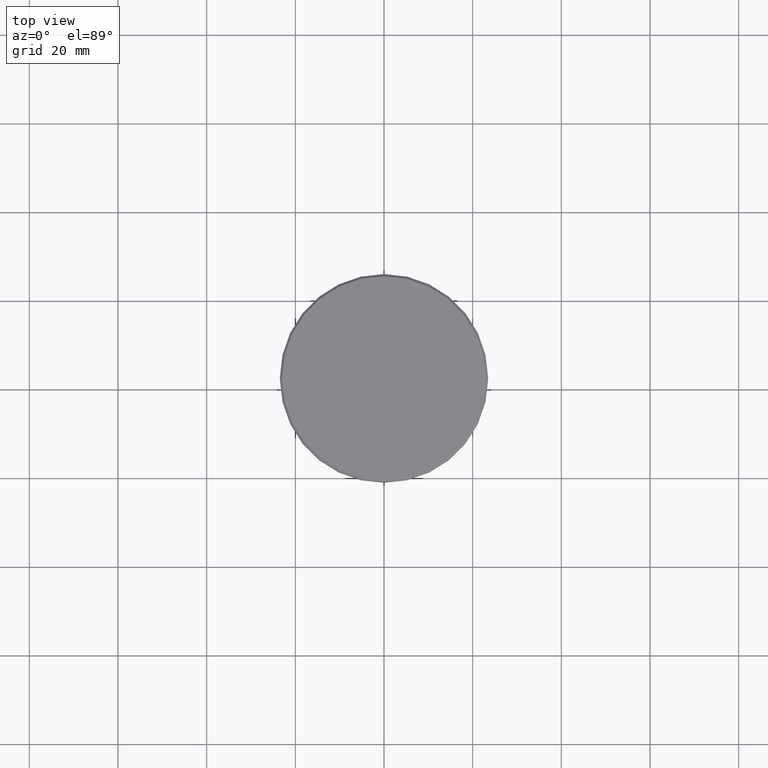
[diagram: clean part render]
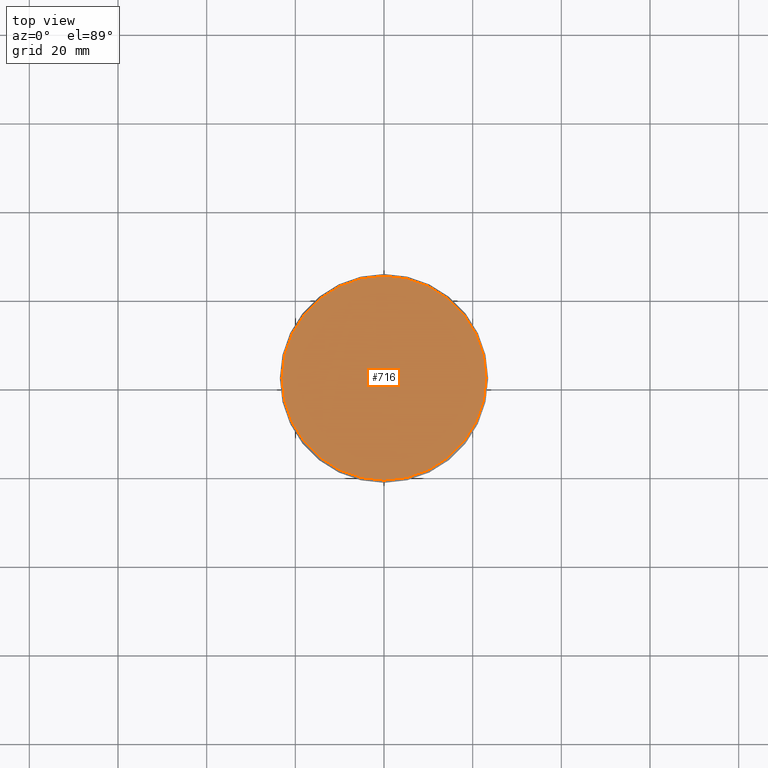
[diagram: same view with one face highlighted and labeled with its STEP entity id]
A machine part, top view. The second image highlights one B-rep face of the part: STEP entity #716.
In plain terms, the highlighted planar face has unit normal (0, -0, 1).
Its self-contained STEP definition (entity closure, byte-faithful):
#14 = AXIS2_PLACEMENT_3D ( 'NONE', #118, #853, #404 ) ;
#21 = PLANE ( 'NONE',  #673 ) ;
#36 = VERTEX_POINT ( 'NONE', #507 ) ;
#118 = CARTESIAN_POINT ( 'NONE',  ( 0.000000000000000000, 0.000000000000000000, 0.000000000000000000 ) ) ;
#151 = CARTESIAN_POINT ( 'NONE',  ( 0.000000000000000000, 0.000000000000000000, 0.000000000000000000 ) ) ;
#337 = DIRECTION ( 'NONE',  ( 1.000000000000000000, 0.000000000000000000, 0.000000000000000000 ) ) ;
#366 = CARTESIAN_POINT ( 'NONE',  ( -22.99999999999999645, 0.000000000000000000, 0.000000000000000000 ) ) ;
#390 = DIRECTION ( 'NONE',  ( 1.000000000000000000, 0.000000000000000000, 0.000000000000000000 ) ) ;
#395 = CARTESIAN_POINT ( 'NONE',  ( 0.000000000000000000, 0.000000000000000000, 0.000000000000000000 ) ) ;
#404 = DIRECTION ( 'NONE',  ( 1.000000000000000000, 0.000000000000000000, 0.000000000000000000 ) ) ;
#406 = EDGE_LOOP ( 'NONE', ( #1068, #535 ) ) ;
#477 = CIRCLE ( 'NONE', #640, 22.99999999999999645 ) ;
#495 = CIRCLE ( 'NONE', #14, 22.99999999999999645 ) ;
#507 = CARTESIAN_POINT ( 'NONE',  ( 22.99999999999999645, 2.847303808017596139E-15, 0.000000000000000000 ) ) ;
#525 = DIRECTION ( 'NONE',  ( -0.000000000000000000, -0.000000000000000000, 1.000000000000000000 ) ) ;
#535 = ORIENTED_EDGE ( 'NONE', *, *, #961, .T. ) ;
#581 = FACE_OUTER_BOUND ( 'NONE', #406, .T. ) ;
#640 = AXIS2_PLACEMENT_3D ( 'NONE', #151, #525, #337 ) ;
#673 = AXIS2_PLACEMENT_3D ( 'NONE', #395, #1040, #390 ) ;
#716 = ADVANCED_FACE ( 'NONE', ( #581 ), #21, .T. ) ;
#738 = EDGE_CURVE ( 'NONE', #1131, #36, #495, .T. ) ;
#853 = DIRECTION ( 'NONE',  ( -0.000000000000000000, -0.000000000000000000, 1.000000000000000000 ) ) ;
#961 = EDGE_CURVE ( 'NONE', #36, #1131, #477, .T. ) ;
#1040 = DIRECTION ( 'NONE',  ( 0.000000000000000000, -0.000000000000000000, 1.000000000000000000 ) ) ;
#1068 = ORIENTED_EDGE ( 'NONE', *, *, #738, .T. ) ;
#1131 = VERTEX_POINT ( 'NONE', #366 ) ;